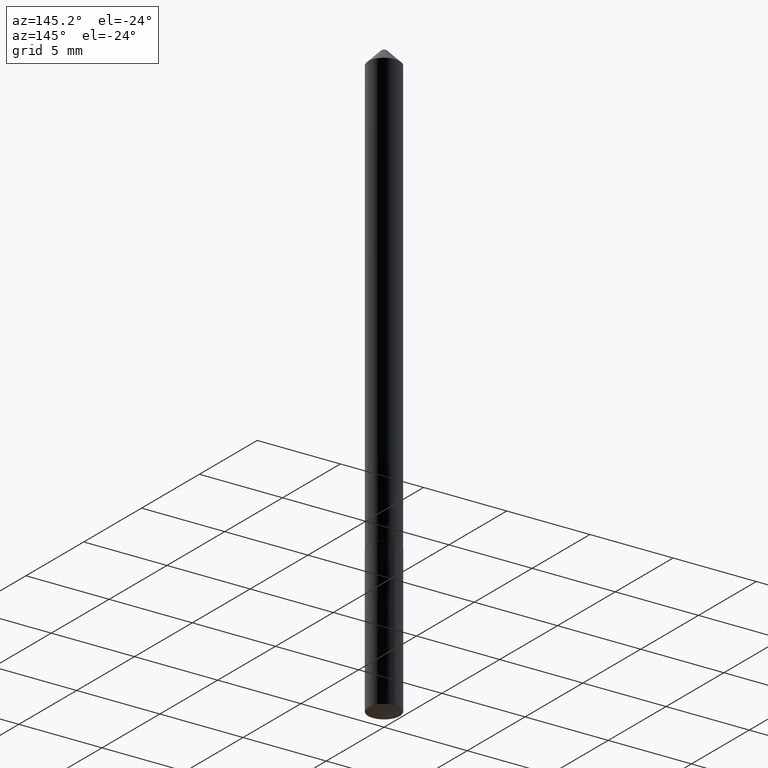
[diagram: clean part render]
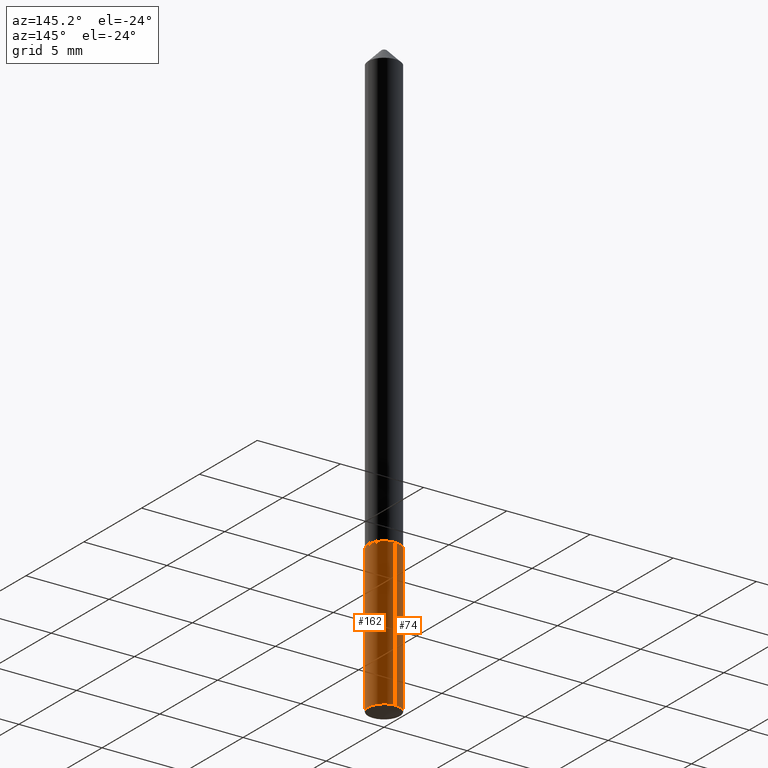
[diagram: same view with one multi-face feature highlighted, each face labeled with its STEP entity id]
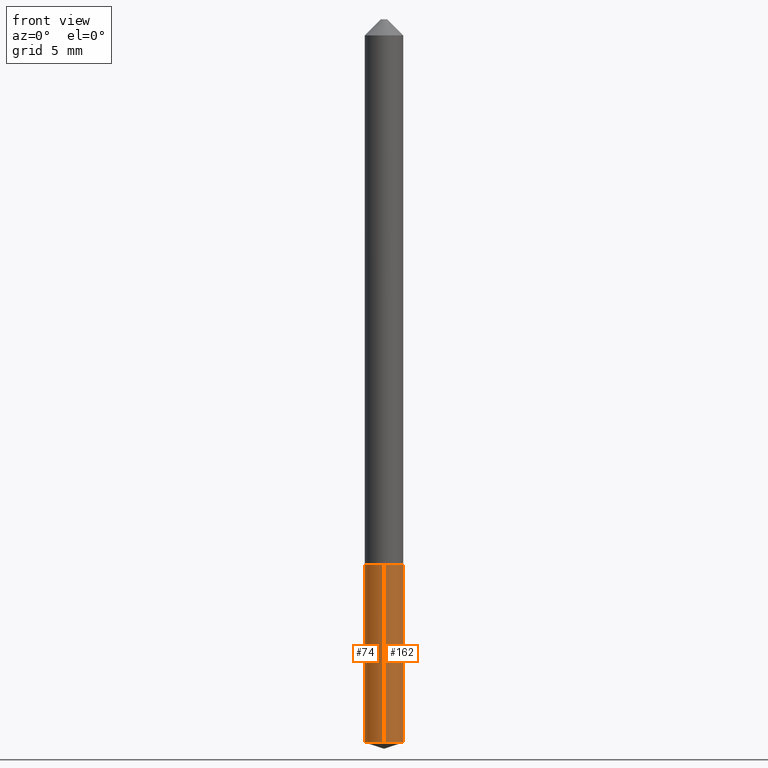
[diagram: same view with one multi-face feature highlighted, each face labeled with its STEP entity id]
A machine part, auxiliary view. The highlighted faces form ONE feature: a constant-radius fillet chain: 2 tangent blend faces with common blend radius 0.95 mm. The faces share edges in the B-rep.
A second angle (front view) of the same feature is appended — it is thin or edge-on in the first view.
Their STEP definitions:
[1] entity #162 (Cylinder):
#1 = CARTESIAN_POINT ( 'NONE',  ( 3.437069595281901747E-29, -4.907384464809379320E-15, -1.405507825295926105 ) ) ;
#4 = VERTEX_POINT ( 'NONE', #10 ) ;
#10 = CARTESIAN_POINT ( 'NONE',  ( -2.611628041454404664E-16, -0.03740000000000370112, -1.058999999999999719 ) ) ;
#18 = ORIENTED_EDGE ( 'NONE', *, *, #351, .T. ) ;
#21 = CARTESIAN_POINT ( 'NONE',  ( 2.589751465750059705E-29, -3.697478737834891287E-15, -1.058999999999999941 ) ) ;
#32 = AXIS2_PLACEMENT_3D ( 'NONE', #21, #103, #75 ) ;
#48 = CIRCLE ( 'NONE', #323, 0.03739999999999999575 ) ;
#52 = CIRCLE ( 'NONE', #32, 0.03740000000000000269 ) ;
#75 = DIRECTION ( 'NONE',  ( -6.982962677686265922E-15, -1.000000000000000000, 3.652203200085913145E-15 ) ) ;
#76 = CARTESIAN_POINT ( 'NONE',  ( 2.589751465750059705E-29, -3.697478737834891287E-15, -1.058999999999999941 ) ) ;
#77 = DIRECTION ( 'NONE',  ( -6.982962677686265922E-15, -1.000000000000000000, 0.000000000000000000 ) ) ;
#82 = LINE ( 'NONE', #290, #219 ) ;
#86 = DIRECTION ( 'NONE',  ( -2.445307342794385489E-29, 3.491712563608626487E-15, 1.000000000000000000 ) ) ;
#103 = DIRECTION ( 'NONE',  ( -2.445307342794385489E-29, 3.491712563608626487E-15, 1.000000000000000000 ) ) ;
#104 = CYLINDRICAL_SURFACE ( 'NONE', #134, 0.03739999999999999575 ) ;
#110 = CARTESIAN_POINT ( 'NONE',  ( 2.657429831743033238E-16, 0.03739999999999630426, -1.059000000000000163 ) ) ;
#120 = VERTEX_POINT ( 'NONE', #232 ) ;
#131 = ORIENTED_EDGE ( 'NONE', *, *, #255, .F. ) ;
#134 = AXIS2_PLACEMENT_3D ( 'NONE', #76, #86, #180 ) ;
#147 = CARTESIAN_POINT ( 'NONE',  ( -2.611628041454319369E-16, -0.03740000000000490155, -1.405507825295926105 ) ) ;
#162 = ADVANCED_FACE ( 'NONE', ( #381 ), #104, .T. ) ;
#163 = VERTEX_POINT ( 'NONE', #147 ) ;
#172 = DIRECTION ( 'NONE',  ( -2.445307342794385489E-29, 3.491712563608626093E-15, 1.000000000000000000 ) ) ;
#180 = DIRECTION ( 'NONE',  ( -6.982962677686265922E-15, -1.000000000000000000, 3.652203200085913934E-15 ) ) ;
#190 = VERTEX_POINT ( 'NONE', #265 ) ;
#210 = LINE ( 'NONE', #110, #298 ) ;
#219 = VECTOR ( 'NONE', #172, 39.37007874015748143 ) ;
#232 = CARTESIAN_POINT ( 'NONE',  ( 2.657429831743117548E-16, 0.03739999999999508301, -1.405507825295926105 ) ) ;
#255 = EDGE_CURVE ( 'NONE', #163, #4, #82, .T. ) ;
#263 = DIRECTION ( 'NONE',  ( -2.445307342794385489E-29, 3.491712563608626093E-15, 1.000000000000000000 ) ) ;
#265 = CARTESIAN_POINT ( 'NONE',  ( 2.657429831743119027E-16, 0.03739999999999631120, -1.059000000000000163 ) ) ;
#290 = CARTESIAN_POINT ( 'NONE',  ( -2.611628041454404171E-16, -0.03740000000000369418, -1.058999999999999719 ) ) ;
#298 = VECTOR ( 'NONE', #263, 39.37007874015748143 ) ;
#299 = DIRECTION ( 'NONE',  ( -2.445307342794385489E-29, 3.491712563608626487E-15, 1.000000000000000000 ) ) ;
#307 = ORIENTED_EDGE ( 'NONE', *, *, #374, .T. ) ;
#308 = EDGE_CURVE ( 'NONE', #4, #190, #52, .T. ) ;
#323 = AXIS2_PLACEMENT_3D ( 'NONE', #1, #299, #77 ) ;
#335 = EDGE_LOOP ( 'NONE', ( #307, #18, #376, #131 ) ) ;
#351 = EDGE_CURVE ( 'NONE', #120, #190, #210, .T. ) ;
#374 = EDGE_CURVE ( 'NONE', #163, #120, #48, .T. ) ;
#376 = ORIENTED_EDGE ( 'NONE', *, *, #308, .F. ) ;
#381 = FACE_OUTER_BOUND ( 'NONE', #335, .T. ) ;
[2] entity #74 (Cylinder):
#4 = VERTEX_POINT ( 'NONE', #10 ) ;
#10 = CARTESIAN_POINT ( 'NONE',  ( -2.611628041454404664E-16, -0.03740000000000370112, -1.058999999999999719 ) ) ;
#24 = DIRECTION ( 'NONE',  ( -6.982962677686265922E-15, -1.000000000000000000, 3.652203200085913934E-15 ) ) ;
#29 = CARTESIAN_POINT ( 'NONE',  ( 2.589751465750059705E-29, -3.697478737834891287E-15, -1.058999999999999941 ) ) ;
#61 = CIRCLE ( 'NONE', #169, 0.03740000000000000269 ) ;
#74 = ADVANCED_FACE ( 'NONE', ( #236 ), #293, .T. ) ;
#82 = LINE ( 'NONE', #290, #219 ) ;
#91 = ORIENTED_EDGE ( 'NONE', *, *, #380, .T. ) ;
#99 = ORIENTED_EDGE ( 'NONE', *, *, #255, .T. ) ;
#110 = CARTESIAN_POINT ( 'NONE',  ( 2.657429831743033238E-16, 0.03739999999999630426, -1.059000000000000163 ) ) ;
#114 = CARTESIAN_POINT ( 'NONE',  ( 3.437069595281901747E-29, -4.907384464809379320E-15, -1.405507825295926105 ) ) ;
#117 = ORIENTED_EDGE ( 'NONE', *, *, #351, .F. ) ;
#120 = VERTEX_POINT ( 'NONE', #232 ) ;
#147 = CARTESIAN_POINT ( 'NONE',  ( -2.611628041454319369E-16, -0.03740000000000490155, -1.405507825295926105 ) ) ;
#163 = VERTEX_POINT ( 'NONE', #147 ) ;
#169 = AXIS2_PLACEMENT_3D ( 'NONE', #187, #295, #355 ) ;
#172 = DIRECTION ( 'NONE',  ( -2.445307342794385489E-29, 3.491712563608626093E-15, 1.000000000000000000 ) ) ;
#187 = CARTESIAN_POINT ( 'NONE',  ( 2.589751465750059705E-29, -3.697478737834891287E-15, -1.058999999999999941 ) ) ;
#190 = VERTEX_POINT ( 'NONE', #265 ) ;
#193 = ORIENTED_EDGE ( 'NONE', *, *, #220, .F. ) ;
#206 = DIRECTION ( 'NONE',  ( -2.445307342794385489E-29, 3.491712563608626487E-15, 1.000000000000000000 ) ) ;
#210 = LINE ( 'NONE', #110, #298 ) ;
#219 = VECTOR ( 'NONE', #172, 39.37007874015748143 ) ;
#220 = EDGE_CURVE ( 'NONE', #190, #4, #61, .T. ) ;
#232 = CARTESIAN_POINT ( 'NONE',  ( 2.657429831743117548E-16, 0.03739999999999508301, -1.405507825295926105 ) ) ;
#236 = FACE_OUTER_BOUND ( 'NONE', #367, .T. ) ;
#255 = EDGE_CURVE ( 'NONE', #163, #4, #82, .T. ) ;
#258 = DIRECTION ( 'NONE',  ( -6.982962677686265922E-15, -1.000000000000000000, 0.000000000000000000 ) ) ;
#263 = DIRECTION ( 'NONE',  ( -2.445307342794385489E-29, 3.491712563608626093E-15, 1.000000000000000000 ) ) ;
#265 = CARTESIAN_POINT ( 'NONE',  ( 2.657429831743119027E-16, 0.03739999999999631120, -1.059000000000000163 ) ) ;
#274 = AXIS2_PLACEMENT_3D ( 'NONE', #114, #206, #258 ) ;
#278 = AXIS2_PLACEMENT_3D ( 'NONE', #29, #300, #24 ) ;
#290 = CARTESIAN_POINT ( 'NONE',  ( -2.611628041454404171E-16, -0.03740000000000369418, -1.058999999999999719 ) ) ;
#293 = CYLINDRICAL_SURFACE ( 'NONE', #278, 0.03739999999999999575 ) ;
#295 = DIRECTION ( 'NONE',  ( -2.445307342794385489E-29, 3.491712563608626487E-15, 1.000000000000000000 ) ) ;
#298 = VECTOR ( 'NONE', #263, 39.37007874015748143 ) ;
#300 = DIRECTION ( 'NONE',  ( -2.445307342794385489E-29, 3.491712563608626487E-15, 1.000000000000000000 ) ) ;
#351 = EDGE_CURVE ( 'NONE', #120, #190, #210, .T. ) ;
#355 = DIRECTION ( 'NONE',  ( -6.982962677686265922E-15, -1.000000000000000000, 3.652203200085913145E-15 ) ) ;
#367 = EDGE_LOOP ( 'NONE', ( #117, #91, #99, #193 ) ) ;
#380 = EDGE_CURVE ( 'NONE', #120, #163, #390, .T. ) ;
#390 = CIRCLE ( 'NONE', #274, 0.03739999999999999575 ) ;